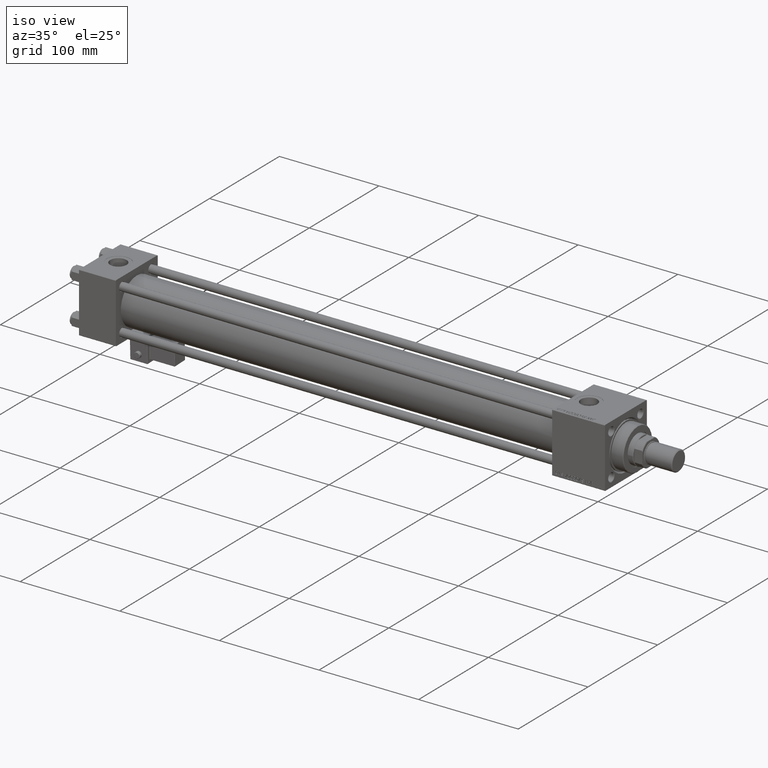
[diagram: clean part render]
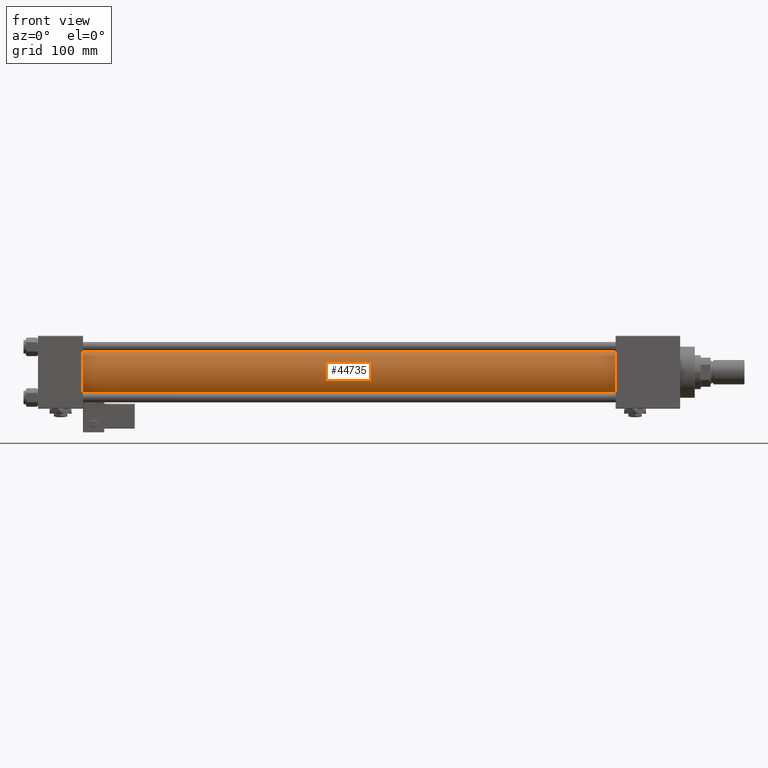
[diagram: tour spotlight — one face highlighted and labeled with its STEP entity id]
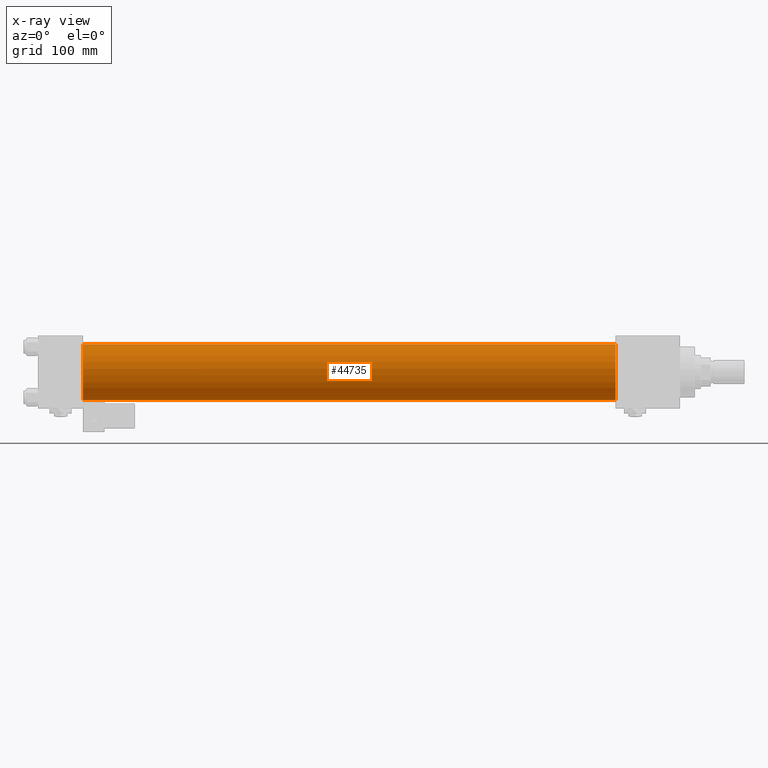
[diagram: x-ray of the same camera — body ghosted, this tour face saturated]
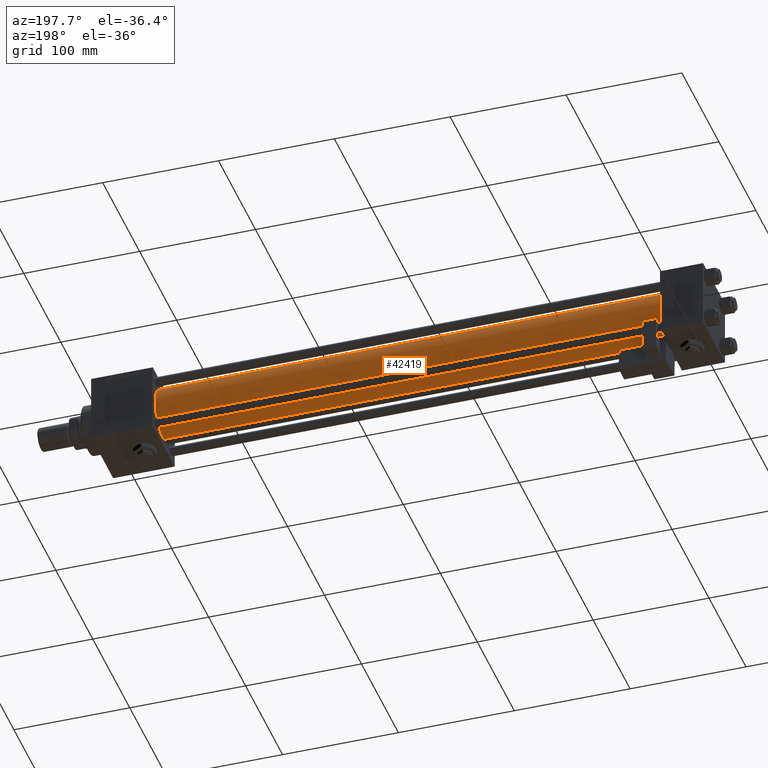
[diagram: tour spotlight — one face highlighted and labeled with its STEP entity id]
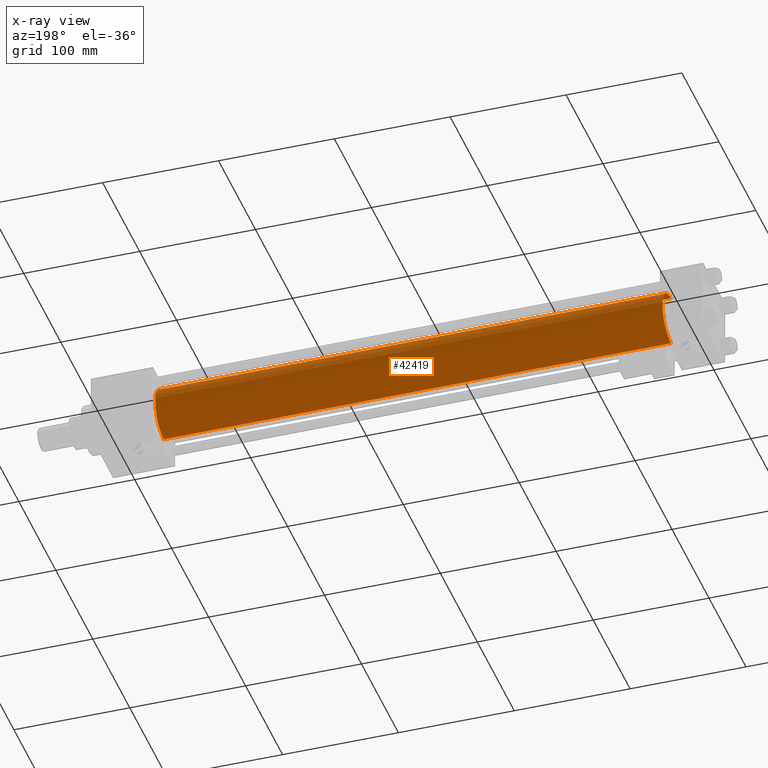
[diagram: x-ray of the same camera — body ghosted, this tour face saturated]
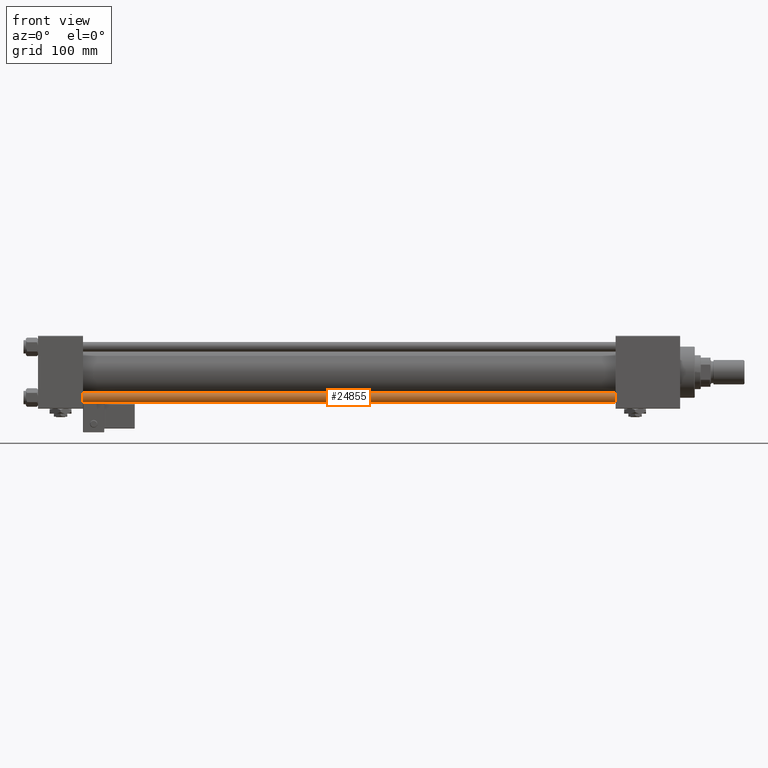
[diagram: tour spotlight — one face highlighted and labeled with its STEP entity id]
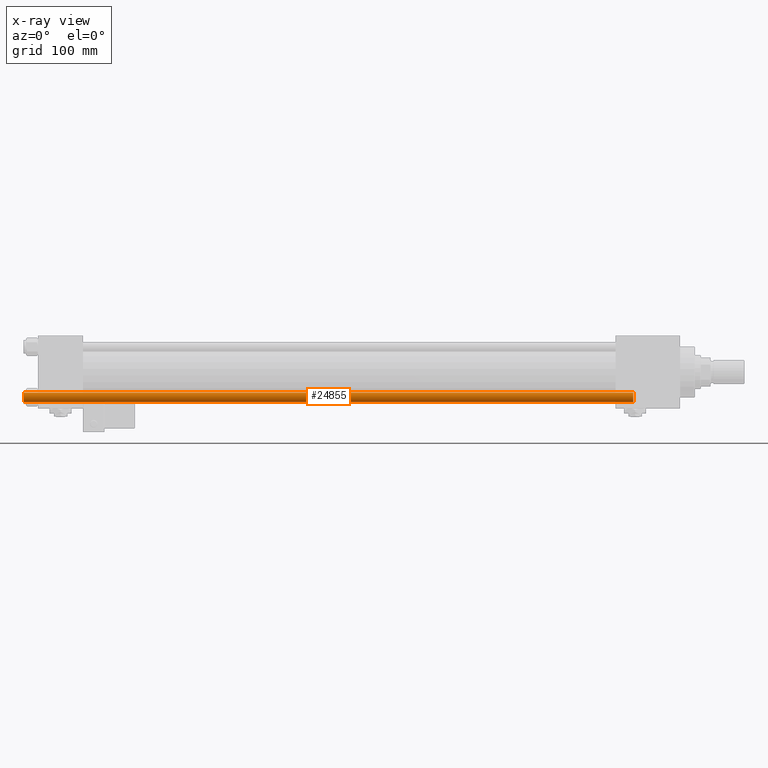
[diagram: x-ray of the same camera — body ghosted, this tour face saturated]
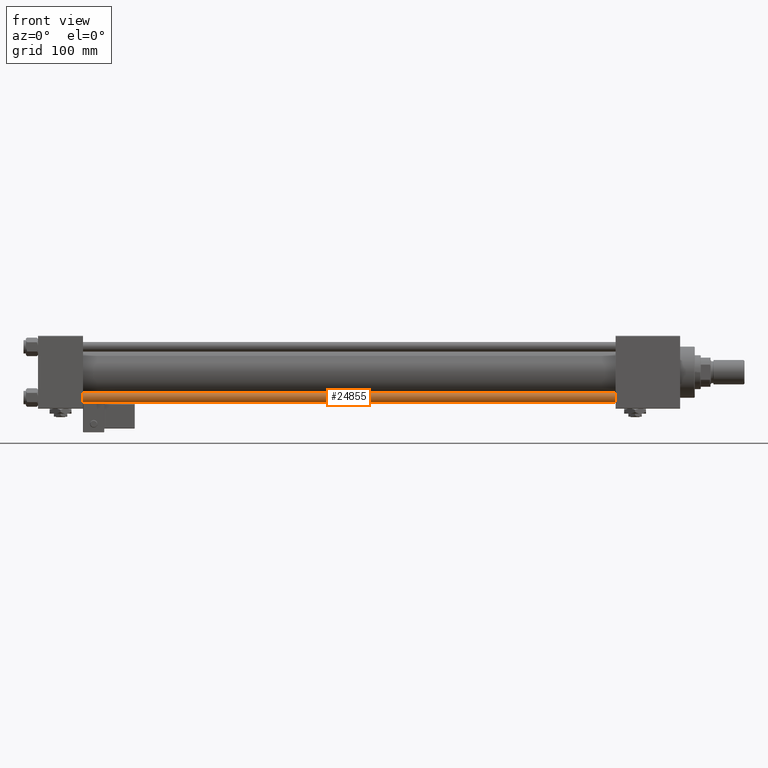
[diagram: tour spotlight — one face highlighted and labeled with its STEP entity id]
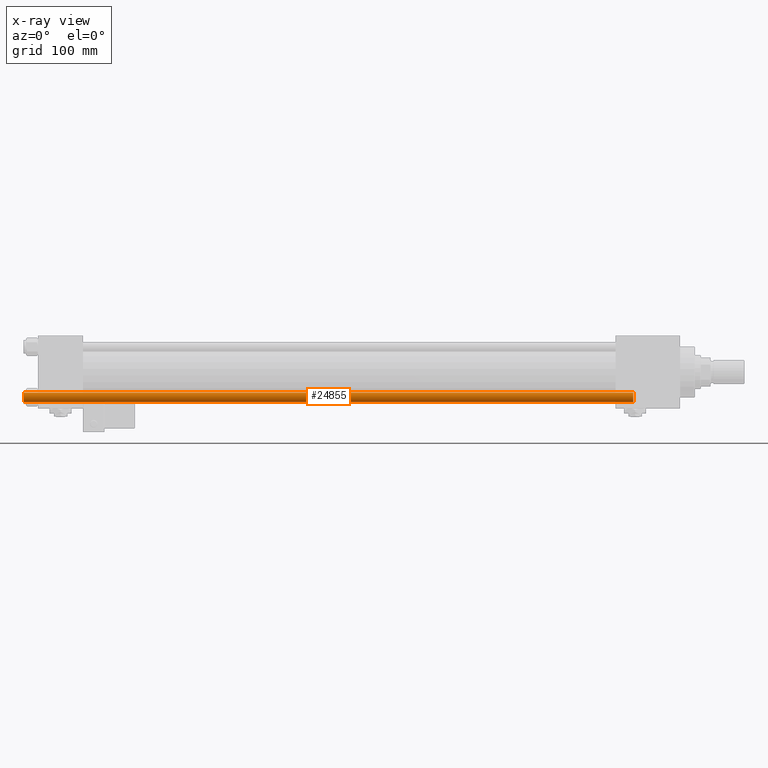
[diagram: x-ray of the same camera — body ghosted, this tour face saturated]
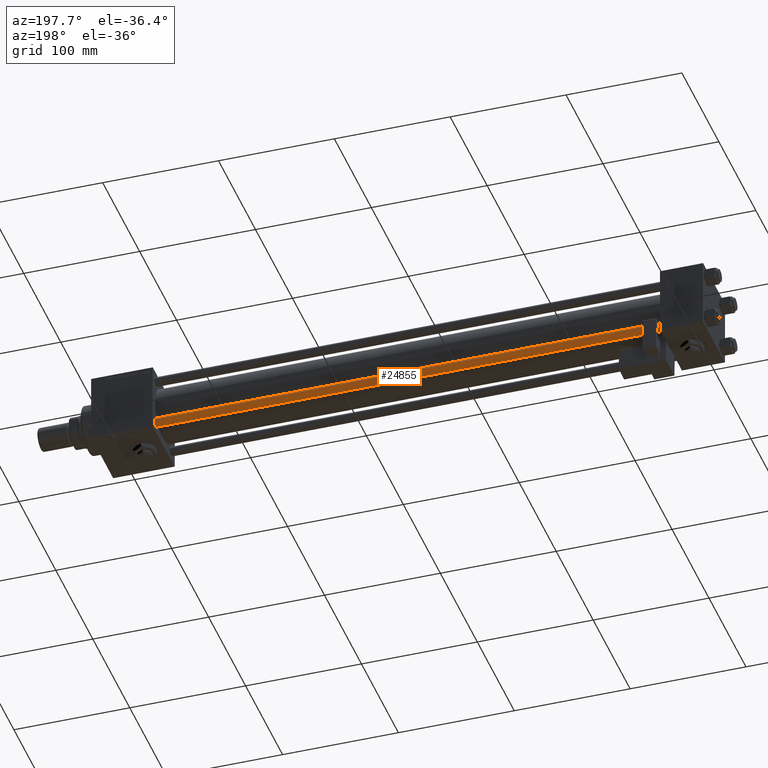
[diagram: tour spotlight — one face highlighted and labeled with its STEP entity id]
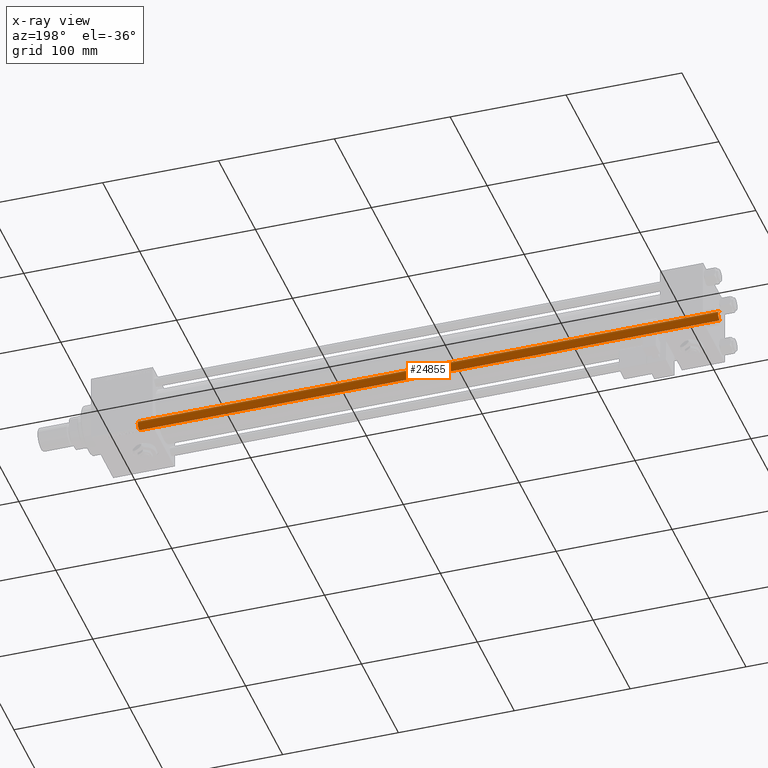
[diagram: x-ray of the same camera — body ghosted, this tour face saturated]
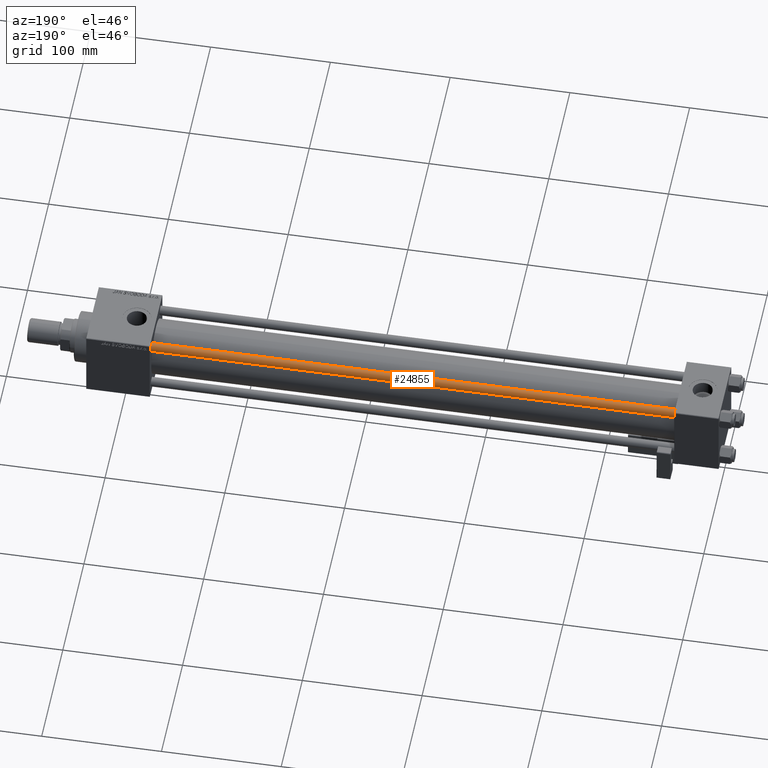
[diagram: tour spotlight — one face highlighted and labeled with its STEP entity id]
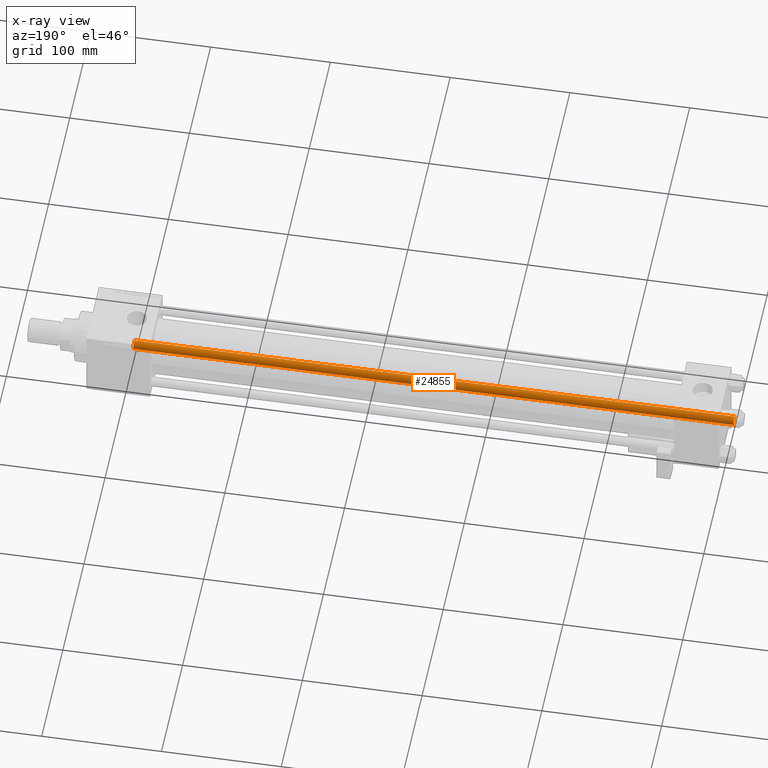
[diagram: x-ray of the same camera — body ghosted, this tour face saturated]
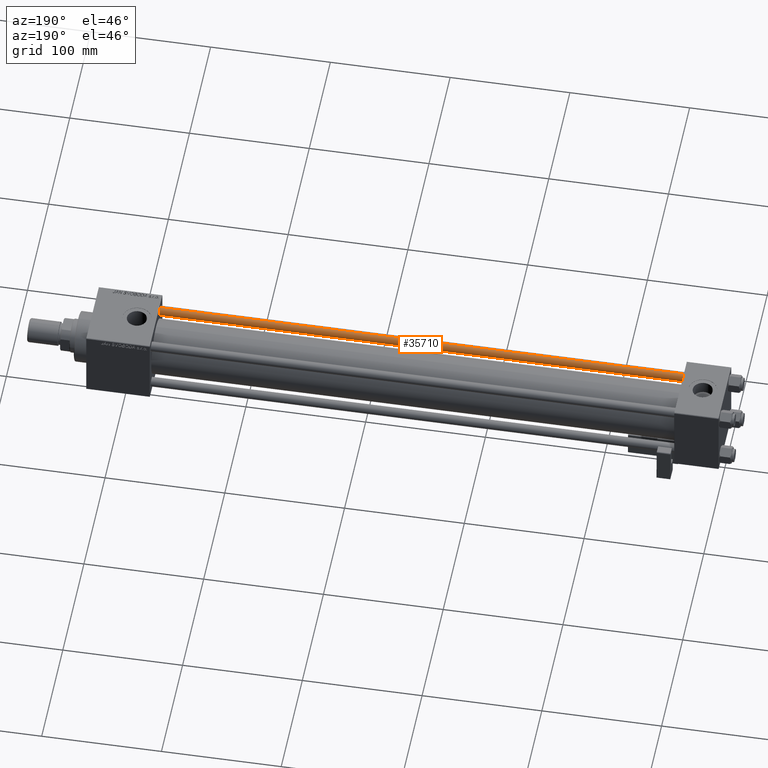
[diagram: tour spotlight — one face highlighted and labeled with its STEP entity id]
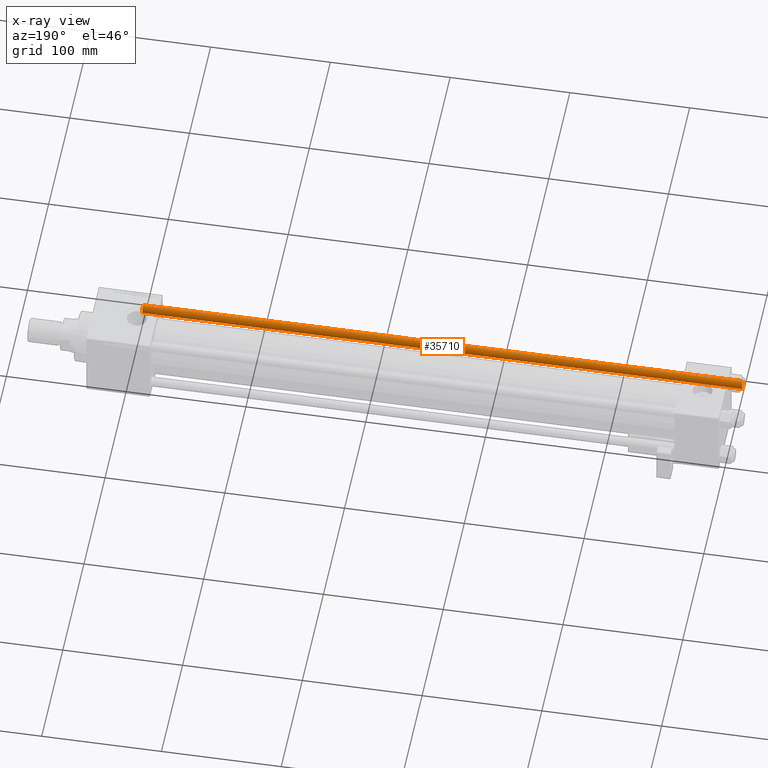
[diagram: x-ray of the same camera — body ghosted, this tour face saturated]
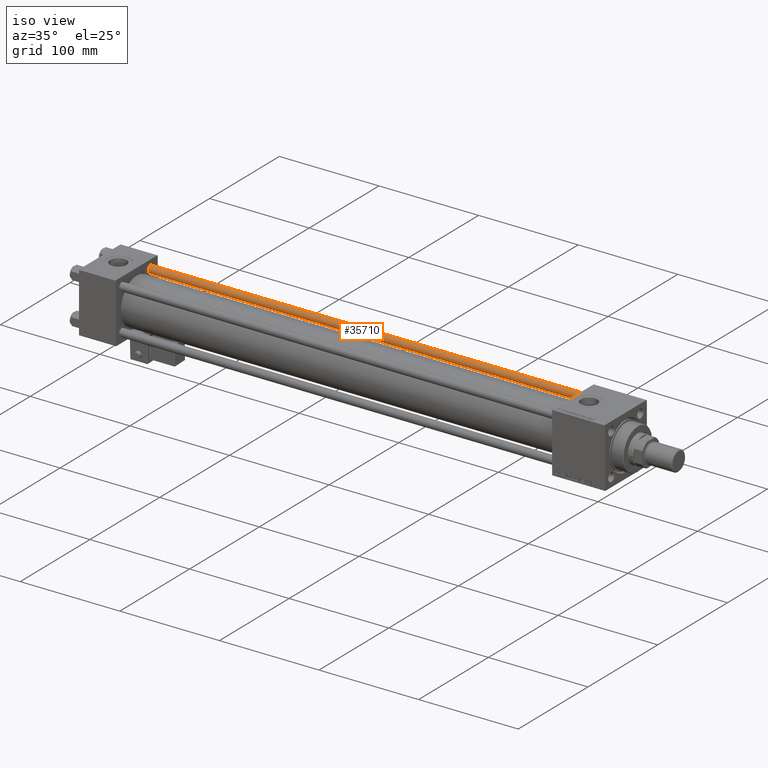
[diagram: tour spotlight — one face highlighted and labeled with its STEP entity id]
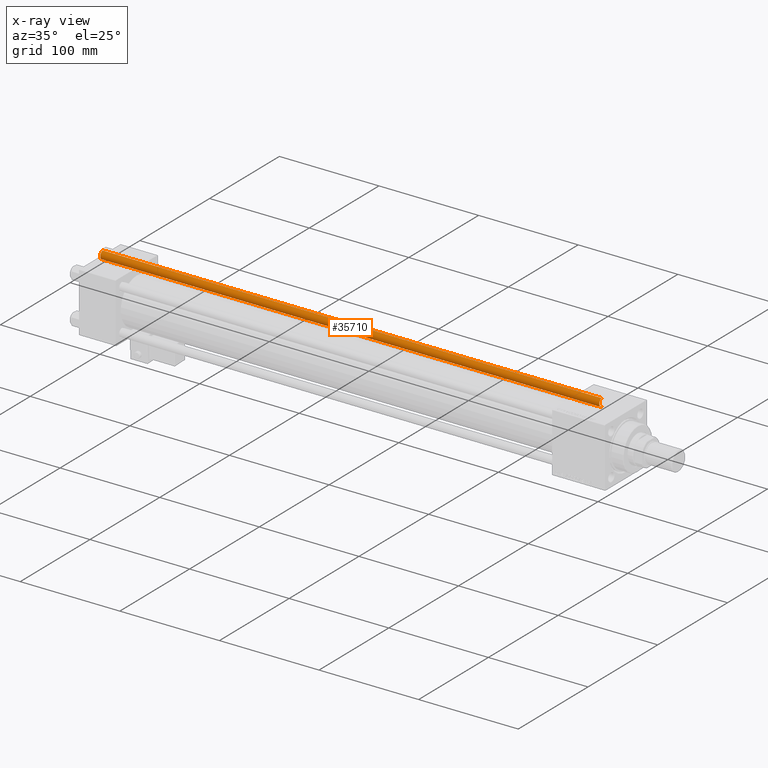
[diagram: x-ray of the same camera — body ghosted, this tour face saturated]
A machine part: a face-by-face anatomy tour. The part has 1341 B-rep faces; the first image is the clean iso view, then the 8 largest visible faces are spotlighted one at a time (largest first), each with its STEP entity span.

Face 1 — front view, entity #44735. An x-ray twin of the same camera follows (body ghosted, this face saturated) — the face is partly hidden behind the body. In plain terms, the highlighted cylindrical surface (edge-blend (fillet) strip) has radius 23 mm, axis along (-1, -0, -0).
Definition (entity closure, byte-faithful):
#1842 = VERTEX_POINT ( 'NONE', #40248 ) ;
#4199 = DIRECTION ( 'NONE',  ( -1.000000000000000000, -0.000000000000000000, -0.000000000000000000 ) ) ;
#4750 = FACE_OUTER_BOUND ( 'NONE', #47930, .T. ) ;
#4853 = EDGE_CURVE ( 'NONE', #34243, #48835, #6489, .T. ) ;
#5969 = AXIS2_PLACEMENT_3D ( 'NONE', #25852, #4199, #47227 ) ;
#6404 = CARTESIAN_POINT ( 'NONE',  ( 475.0000000000000000, 2.146024240737016609E-16, -23.00000000000000000 ) ) ;
#6489 = CIRCLE ( 'NONE', #37538, 23.00000000000000000 ) ;
#6675 = CARTESIAN_POINT ( 'NONE',  ( 36.99999999999997868, -2.602085213965210642E-15, 23.00000000000000000 ) ) ;
#6953 = LINE ( 'NONE', #6404, #23624 ) ;
#9875 = ORIENTED_EDGE ( 'NONE', *, *, #4853, .F. ) ;
#10135 = CARTESIAN_POINT ( 'NONE',  ( 475.0000000000000000, 2.146024240737016609E-16, -23.00000000000000000 ) ) ;
#11757 = ORIENTED_EDGE ( 'NONE', *, *, #19894, .T. ) ;
#17103 = DIRECTION ( 'NONE',  ( 1.000000000000000000, 0.000000000000000000, 0.000000000000000000 ) ) ;
#19375 = CARTESIAN_POINT ( 'NONE',  ( 475.0000000000000000, -2.602085213965210642E-15, 23.00000000000000000 ) ) ;
#19727 = DIRECTION ( 'NONE',  ( -1.000000000000000000, -0.000000000000000000, -0.000000000000000000 ) ) ;
#19894 = EDGE_CURVE ( 'NONE', #34243, #42648, #53802, .T. ) ;
#20734 = CARTESIAN_POINT ( 'NONE',  ( 475.0000000000000000, -2.602085213965210642E-15, 0.000000000000000000 ) ) ;
#22162 = VECTOR ( 'NONE', #32175, 1000.000000000000000 ) ;
#23624 = VECTOR ( 'NONE', #19727, 1000.000000000000000 ) ;
#24957 = EDGE_CURVE ( 'NONE', #42648, #1842, #48965, .T. ) ;
#25852 = CARTESIAN_POINT ( 'NONE',  ( 475.0000000000000000, -2.602085213965210642E-15, 0.000000000000000000 ) ) ;
#32175 = DIRECTION ( 'NONE',  ( -1.000000000000000000, -0.000000000000000000, -0.000000000000000000 ) ) ;
#32996 = CARTESIAN_POINT ( 'NONE',  ( 36.99999999999997868, -2.602085213965210642E-15, 0.000000000000000000 ) ) ;
#34243 = VERTEX_POINT ( 'NONE', #43537 ) ;
#37429 = DIRECTION ( 'NONE',  ( 1.000000000000000000, -0.000000000000000000, 0.000000000000000000 ) ) ;
#37538 = AXIS2_PLACEMENT_3D ( 'NONE', #20734, #17103, #41867 ) ;
#39780 = ORIENTED_EDGE ( 'NONE', *, *, #24957, .T. ) ;
#40248 = CARTESIAN_POINT ( 'NONE',  ( 36.99999999999997868, 2.146024240737016609E-16, -23.00000000000000000 ) ) ;
#41867 = DIRECTION ( 'NONE',  ( 0.000000000000000000, 0.000000000000000000, -1.000000000000000000 ) ) ;
#42258 = CYLINDRICAL_SURFACE ( 'NONE', #5969, 23.00000000000000000 ) ;
#42648 = VERTEX_POINT ( 'NONE', #6675 ) ;
#42779 = EDGE_CURVE ( 'NONE', #48835, #1842, #6953, .T. ) ;
#43537 = CARTESIAN_POINT ( 'NONE',  ( 475.0000000000000000, -2.602085213965210642E-15, 23.00000000000000000 ) ) ;
#44735 = ADVANCED_FACE ( 'NONE', ( #4750 ), #42258, .T. ) ;
#47227 = DIRECTION ( 'NONE',  ( 0.000000000000000000, 0.000000000000000000, 1.000000000000000000 ) ) ;
#47930 = EDGE_LOOP ( 'NONE', ( #50830, #9875, #11757, #39780 ) ) ;
#48821 = DIRECTION ( 'NONE',  ( 0.000000000000000000, 0.000000000000000000, 1.000000000000000000 ) ) ;
#48835 = VERTEX_POINT ( 'NONE', #10135 ) ;
#48965 = CIRCLE ( 'NONE', #52483, 23.00000000000000000 ) ;
#50830 = ORIENTED_EDGE ( 'NONE', *, *, #42779, .F. ) ;
#52483 = AXIS2_PLACEMENT_3D ( 'NONE', #32996, #37429, #48821 ) ;
#53802 = LINE ( 'NONE', #19375, #22162 ) ;

Face 2 — auxiliary view, entity #42419. An x-ray twin of the same camera follows (body ghosted, this face saturated) — the face is partly hidden behind the body. In plain terms, the highlighted cylindrical surface (edge-blend (fillet) strip) has radius 23 mm, axis along (-1, -0, -0).
Definition (entity closure, byte-faithful):
#1435 = ORIENTED_EDGE ( 'NONE', *, *, #42779, .T. ) ;
#1463 = AXIS2_PLACEMENT_3D ( 'NONE', #7021, #48955, #49501 ) ;
#1842 = VERTEX_POINT ( 'NONE', #40248 ) ;
#6404 = CARTESIAN_POINT ( 'NONE',  ( 475.0000000000000000, 2.146024240737016609E-16, -23.00000000000000000 ) ) ;
#6675 = CARTESIAN_POINT ( 'NONE',  ( 36.99999999999997868, -2.602085213965210642E-15, 23.00000000000000000 ) ) ;
#6953 = LINE ( 'NONE', #6404, #23624 ) ;
#7021 = CARTESIAN_POINT ( 'NONE',  ( 475.0000000000000000, -2.602085213965210642E-15, 0.000000000000000000 ) ) ;
#8853 = AXIS2_PLACEMENT_3D ( 'NONE', #32672, #15433, #49044 ) ;
#10135 = CARTESIAN_POINT ( 'NONE',  ( 475.0000000000000000, 2.146024240737016609E-16, -23.00000000000000000 ) ) ;
#13378 = ORIENTED_EDGE ( 'NONE', *, *, #19894, .F. ) ;
#14632 = ORIENTED_EDGE ( 'NONE', *, *, #53755, .T. ) ;
#15433 = DIRECTION ( 'NONE',  ( 1.000000000000000000, -0.000000000000000000, 0.000000000000000000 ) ) ;
#15725 = CIRCLE ( 'NONE', #29062, 23.00000000000000000 ) ;
#18048 = DIRECTION ( 'NONE',  ( 0.000000000000000000, 0.000000000000000000, -1.000000000000000000 ) ) ;
#19375 = CARTESIAN_POINT ( 'NONE',  ( 475.0000000000000000, -2.602085213965210642E-15, 23.00000000000000000 ) ) ;
#19518 = FACE_OUTER_BOUND ( 'NONE', #54112, .T. ) ;
#19727 = DIRECTION ( 'NONE',  ( -1.000000000000000000, -0.000000000000000000, -0.000000000000000000 ) ) ;
#19894 = EDGE_CURVE ( 'NONE', #34243, #42648, #53802, .T. ) ;
#22162 = VECTOR ( 'NONE', #32175, 1000.000000000000000 ) ;
#23624 = VECTOR ( 'NONE', #19727, 1000.000000000000000 ) ;
#29062 = AXIS2_PLACEMENT_3D ( 'NONE', #35556, #52475, #18048 ) ;
#32175 = DIRECTION ( 'NONE',  ( -1.000000000000000000, -0.000000000000000000, -0.000000000000000000 ) ) ;
#32315 = CYLINDRICAL_SURFACE ( 'NONE', #1463, 23.00000000000000000 ) ;
#32672 = CARTESIAN_POINT ( 'NONE',  ( 36.99999999999997868, -2.602085213965210642E-15, 0.000000000000000000 ) ) ;
#34243 = VERTEX_POINT ( 'NONE', #43537 ) ;
#35556 = CARTESIAN_POINT ( 'NONE',  ( 475.0000000000000000, -2.602085213965210642E-15, 0.000000000000000000 ) ) ;
#40248 = CARTESIAN_POINT ( 'NONE',  ( 36.99999999999997868, 2.146024240737016609E-16, -23.00000000000000000 ) ) ;
#41387 = ORIENTED_EDGE ( 'NONE', *, *, #44044, .F. ) ;
#42419 = ADVANCED_FACE ( 'NONE', ( #19518 ), #32315, .T. ) ;
#42648 = VERTEX_POINT ( 'NONE', #6675 ) ;
#42779 = EDGE_CURVE ( 'NONE', #48835, #1842, #6953, .T. ) ;
#43537 = CARTESIAN_POINT ( 'NONE',  ( 475.0000000000000000, -2.602085213965210642E-15, 23.00000000000000000 ) ) ;
#44044 = EDGE_CURVE ( 'NONE', #48835, #34243, #15725, .T. ) ;
#45235 = CIRCLE ( 'NONE', #8853, 23.00000000000000000 ) ;
#48835 = VERTEX_POINT ( 'NONE', #10135 ) ;
#48955 = DIRECTION ( 'NONE',  ( -1.000000000000000000, -0.000000000000000000, -0.000000000000000000 ) ) ;
#49044 = DIRECTION ( 'NONE',  ( 0.000000000000000000, 0.000000000000000000, 1.000000000000000000 ) ) ;
#49501 = DIRECTION ( 'NONE',  ( 0.000000000000000000, 0.000000000000000000, 1.000000000000000000 ) ) ;
#52475 = DIRECTION ( 'NONE',  ( 1.000000000000000000, 0.000000000000000000, 0.000000000000000000 ) ) ;
#53755 = EDGE_CURVE ( 'NONE', #1842, #42648, #45235, .T. ) ;
#53802 = LINE ( 'NONE', #19375, #22162 ) ;
#54112 = EDGE_LOOP ( 'NONE', ( #41387, #1435, #14632, #13378 ) ) ;

Face 3 — front view, entity #24855. An x-ray twin of the same camera follows (body ghosted, this face saturated) — the face is partly hidden behind the body. In plain terms, the highlighted cylindrical surface (edge-blend (fillet) strip) has radius 4 mm, axis along (1, 0, -0).
Definition (entity closure, byte-faithful):
#1354 = DIRECTION ( 'NONE',  ( -0.000000000000000000, -0.000000000000000000, -1.000000000000000000 ) ) ;
#3990 = CARTESIAN_POINT ( 'NONE',  ( -4.000000000000000000, 0.000000000000000000, 501.4999999999999432 ) ) ;
#4006 = DIRECTION ( 'NONE',  ( -0.000000000000000000, -0.000000000000000000, -1.000000000000000000 ) ) ;
#5753 = CARTESIAN_POINT ( 'NONE',  ( 4.000000000000000000, 4.898587196589412829E-16, 502.0000000000000000 ) ) ;
#6752 = VERTEX_POINT ( 'NONE', #52958 ) ;
#7477 = ORIENTED_EDGE ( 'NONE', *, *, #53730, .T. ) ;
#7726 = ORIENTED_EDGE ( 'NONE', *, *, #41875, .T. ) ;
#9752 = VERTEX_POINT ( 'NONE', #53785 ) ;
#10744 = LINE ( 'NONE', #5753, #54184 ) ;
#11957 = ORIENTED_EDGE ( 'NONE', *, *, #20335, .F. ) ;
#12078 = CIRCLE ( 'NONE', #18256, 4.000000000000000000 ) ;
#14386 = FACE_OUTER_BOUND ( 'NONE', #26168, .T. ) ;
#17753 = VECTOR ( 'NONE', #4006, 1000.000000000000000 ) ;
#18256 = AXIS2_PLACEMENT_3D ( 'NONE', #39878, #22371, #31276 ) ;
#20335 = EDGE_CURVE ( 'NONE', #47997, #9752, #42061, .T. ) ;
#21445 = AXIS2_PLACEMENT_3D ( 'NONE', #31079, #1354, #52156 ) ;
#22371 = DIRECTION ( 'NONE',  ( 0.000000000000000000, 0.000000000000000000, -1.000000000000000000 ) ) ;
#22477 = EDGE_CURVE ( 'NONE', #6752, #23797, #10744, .T. ) ;
#22977 = DIRECTION ( 'NONE',  ( -0.000000000000000000, -0.000000000000000000, -1.000000000000000000 ) ) ;
#23797 = VERTEX_POINT ( 'NONE', #23830 ) ;
#23830 = CARTESIAN_POINT ( 'NONE',  ( 4.000000000000000000, 4.898587196589412829E-16, 0.4999999999999449329 ) ) ;
#24855 = ADVANCED_FACE ( 'NONE', ( #14386 ), #26336, .T. ) ;
#26168 = EDGE_LOOP ( 'NONE', ( #7726, #40262, #7477, #11957 ) ) ;
#26336 = CYLINDRICAL_SURFACE ( 'NONE', #21445, 4.000000000000000000 ) ;
#28771 = CARTESIAN_POINT ( 'NONE',  ( 0.000000000000000000, 0.000000000000000000, 0.4999999999999449329 ) ) ;
#29284 = CARTESIAN_POINT ( 'NONE',  ( -4.000000000000000000, 0.000000000000000000, 502.0000000000000000 ) ) ;
#31079 = CARTESIAN_POINT ( 'NONE',  ( 0.000000000000000000, 0.000000000000000000, 502.0000000000000000 ) ) ;
#31276 = DIRECTION ( 'NONE',  ( 1.000000000000000000, 0.000000000000000000, 0.000000000000000000 ) ) ;
#39027 = CIRCLE ( 'NONE', #53222, 4.000000000000000000 ) ;
#39878 = CARTESIAN_POINT ( 'NONE',  ( 0.000000000000000000, 0.000000000000000000, 501.4999999999999432 ) ) ;
#40262 = ORIENTED_EDGE ( 'NONE', *, *, #22477, .T. ) ;
#41875 = EDGE_CURVE ( 'NONE', #47997, #6752, #12078, .T. ) ;
#42061 = LINE ( 'NONE', #29284, #17753 ) ;
#45162 = DIRECTION ( 'NONE',  ( -0.000000000000000000, -0.000000000000000000, 1.000000000000000000 ) ) ;
#45703 = DIRECTION ( 'NONE',  ( 1.000000000000000000, 0.000000000000000000, 0.000000000000000000 ) ) ;
#47997 = VERTEX_POINT ( 'NONE', #3990 ) ;
#52156 = DIRECTION ( 'NONE',  ( -1.000000000000000000, 0.000000000000000000, 0.000000000000000000 ) ) ;
#52958 = CARTESIAN_POINT ( 'NONE',  ( 4.000000000000000000, 4.898587196589412829E-16, 501.4999999999999432 ) ) ;
#53222 = AXIS2_PLACEMENT_3D ( 'NONE', #28771, #45162, #45703 ) ;
#53730 = EDGE_CURVE ( 'NONE', #23797, #9752, #39027, .T. ) ;
#53785 = CARTESIAN_POINT ( 'NONE',  ( -4.000000000000000000, 0.000000000000000000, 0.4999999999999449329 ) ) ;
#54184 = VECTOR ( 'NONE', #22977, 1000.000000000000000 ) ;

Face 4 — front view, entity #24855. An x-ray twin of the same camera follows (body ghosted, this face saturated) — the face is partly hidden behind the body. In plain terms, the highlighted cylindrical surface (edge-blend (fillet) strip) has radius 4 mm, axis along (-1, -0, -0).
Definition (entity closure, byte-faithful):
#1354 = DIRECTION ( 'NONE',  ( -0.000000000000000000, -0.000000000000000000, -1.000000000000000000 ) ) ;
#3990 = CARTESIAN_POINT ( 'NONE',  ( -4.000000000000000000, 0.000000000000000000, 501.4999999999999432 ) ) ;
#4006 = DIRECTION ( 'NONE',  ( -0.000000000000000000, -0.000000000000000000, -1.000000000000000000 ) ) ;
#5753 = CARTESIAN_POINT ( 'NONE',  ( 4.000000000000000000, 4.898587196589412829E-16, 502.0000000000000000 ) ) ;
#6752 = VERTEX_POINT ( 'NONE', #52958 ) ;
#7477 = ORIENTED_EDGE ( 'NONE', *, *, #53730, .T. ) ;
#7726 = ORIENTED_EDGE ( 'NONE', *, *, #41875, .T. ) ;
#9752 = VERTEX_POINT ( 'NONE', #53785 ) ;
#10744 = LINE ( 'NONE', #5753, #54184 ) ;
#11957 = ORIENTED_EDGE ( 'NONE', *, *, #20335, .F. ) ;
#12078 = CIRCLE ( 'NONE', #18256, 4.000000000000000000 ) ;
#14386 = FACE_OUTER_BOUND ( 'NONE', #26168, .T. ) ;
#17753 = VECTOR ( 'NONE', #4006, 1000.000000000000000 ) ;
#18256 = AXIS2_PLACEMENT_3D ( 'NONE', #39878, #22371, #31276 ) ;
#20335 = EDGE_CURVE ( 'NONE', #47997, #9752, #42061, .T. ) ;
#21445 = AXIS2_PLACEMENT_3D ( 'NONE', #31079, #1354, #52156 ) ;
#22371 = DIRECTION ( 'NONE',  ( 0.000000000000000000, 0.000000000000000000, -1.000000000000000000 ) ) ;
#22477 = EDGE_CURVE ( 'NONE', #6752, #23797, #10744, .T. ) ;
#22977 = DIRECTION ( 'NONE',  ( -0.000000000000000000, -0.000000000000000000, -1.000000000000000000 ) ) ;
#23797 = VERTEX_POINT ( 'NONE', #23830 ) ;
#23830 = CARTESIAN_POINT ( 'NONE',  ( 4.000000000000000000, 4.898587196589412829E-16, 0.4999999999999449329 ) ) ;
#24855 = ADVANCED_FACE ( 'NONE', ( #14386 ), #26336, .T. ) ;
#26168 = EDGE_LOOP ( 'NONE', ( #7726, #40262, #7477, #11957 ) ) ;
#26336 = CYLINDRICAL_SURFACE ( 'NONE', #21445, 4.000000000000000000 ) ;
#28771 = CARTESIAN_POINT ( 'NONE',  ( 0.000000000000000000, 0.000000000000000000, 0.4999999999999449329 ) ) ;
#29284 = CARTESIAN_POINT ( 'NONE',  ( -4.000000000000000000, 0.000000000000000000, 502.0000000000000000 ) ) ;
#31079 = CARTESIAN_POINT ( 'NONE',  ( 0.000000000000000000, 0.000000000000000000, 502.0000000000000000 ) ) ;
#31276 = DIRECTION ( 'NONE',  ( 1.000000000000000000, 0.000000000000000000, 0.000000000000000000 ) ) ;
#39027 = CIRCLE ( 'NONE', #53222, 4.000000000000000000 ) ;
#39878 = CARTESIAN_POINT ( 'NONE',  ( 0.000000000000000000, 0.000000000000000000, 501.4999999999999432 ) ) ;
#40262 = ORIENTED_EDGE ( 'NONE', *, *, #22477, .T. ) ;
#41875 = EDGE_CURVE ( 'NONE', #47997, #6752, #12078, .T. ) ;
#42061 = LINE ( 'NONE', #29284, #17753 ) ;
#45162 = DIRECTION ( 'NONE',  ( -0.000000000000000000, -0.000000000000000000, 1.000000000000000000 ) ) ;
#45703 = DIRECTION ( 'NONE',  ( 1.000000000000000000, 0.000000000000000000, 0.000000000000000000 ) ) ;
#47997 = VERTEX_POINT ( 'NONE', #3990 ) ;
#52156 = DIRECTION ( 'NONE',  ( -1.000000000000000000, 0.000000000000000000, 0.000000000000000000 ) ) ;
#52958 = CARTESIAN_POINT ( 'NONE',  ( 4.000000000000000000, 4.898587196589412829E-16, 501.4999999999999432 ) ) ;
#53222 = AXIS2_PLACEMENT_3D ( 'NONE', #28771, #45162, #45703 ) ;
#53730 = EDGE_CURVE ( 'NONE', #23797, #9752, #39027, .T. ) ;
#53785 = CARTESIAN_POINT ( 'NONE',  ( -4.000000000000000000, 0.000000000000000000, 0.4999999999999449329 ) ) ;
#54184 = VECTOR ( 'NONE', #22977, 1000.000000000000000 ) ;

Face 5 — auxiliary view, entity #24855. An x-ray twin of the same camera follows (body ghosted, this face saturated) — the face is partly hidden behind the body. In plain terms, the highlighted cylindrical surface (edge-blend (fillet) strip) has radius 4 mm, axis along (1, -0, 0).
Definition (entity closure, byte-faithful):
#1354 = DIRECTION ( 'NONE',  ( -0.000000000000000000, -0.000000000000000000, -1.000000000000000000 ) ) ;
#3990 = CARTESIAN_POINT ( 'NONE',  ( -4.000000000000000000, 0.000000000000000000, 501.4999999999999432 ) ) ;
#4006 = DIRECTION ( 'NONE',  ( -0.000000000000000000, -0.000000000000000000, -1.000000000000000000 ) ) ;
#5753 = CARTESIAN_POINT ( 'NONE',  ( 4.000000000000000000, 4.898587196589412829E-16, 502.0000000000000000 ) ) ;
#6752 = VERTEX_POINT ( 'NONE', #52958 ) ;
#7477 = ORIENTED_EDGE ( 'NONE', *, *, #53730, .T. ) ;
#7726 = ORIENTED_EDGE ( 'NONE', *, *, #41875, .T. ) ;
#9752 = VERTEX_POINT ( 'NONE', #53785 ) ;
#10744 = LINE ( 'NONE', #5753, #54184 ) ;
#11957 = ORIENTED_EDGE ( 'NONE', *, *, #20335, .F. ) ;
#12078 = CIRCLE ( 'NONE', #18256, 4.000000000000000000 ) ;
#14386 = FACE_OUTER_BOUND ( 'NONE', #26168, .T. ) ;
#17753 = VECTOR ( 'NONE', #4006, 1000.000000000000000 ) ;
#18256 = AXIS2_PLACEMENT_3D ( 'NONE', #39878, #22371, #31276 ) ;
#20335 = EDGE_CURVE ( 'NONE', #47997, #9752, #42061, .T. ) ;
#21445 = AXIS2_PLACEMENT_3D ( 'NONE', #31079, #1354, #52156 ) ;
#22371 = DIRECTION ( 'NONE',  ( 0.000000000000000000, 0.000000000000000000, -1.000000000000000000 ) ) ;
#22477 = EDGE_CURVE ( 'NONE', #6752, #23797, #10744, .T. ) ;
#22977 = DIRECTION ( 'NONE',  ( -0.000000000000000000, -0.000000000000000000, -1.000000000000000000 ) ) ;
#23797 = VERTEX_POINT ( 'NONE', #23830 ) ;
#23830 = CARTESIAN_POINT ( 'NONE',  ( 4.000000000000000000, 4.898587196589412829E-16, 0.4999999999999449329 ) ) ;
#24855 = ADVANCED_FACE ( 'NONE', ( #14386 ), #26336, .T. ) ;
#26168 = EDGE_LOOP ( 'NONE', ( #7726, #40262, #7477, #11957 ) ) ;
#26336 = CYLINDRICAL_SURFACE ( 'NONE', #21445, 4.000000000000000000 ) ;
#28771 = CARTESIAN_POINT ( 'NONE',  ( 0.000000000000000000, 0.000000000000000000, 0.4999999999999449329 ) ) ;
#29284 = CARTESIAN_POINT ( 'NONE',  ( -4.000000000000000000, 0.000000000000000000, 502.0000000000000000 ) ) ;
#31079 = CARTESIAN_POINT ( 'NONE',  ( 0.000000000000000000, 0.000000000000000000, 502.0000000000000000 ) ) ;
#31276 = DIRECTION ( 'NONE',  ( 1.000000000000000000, 0.000000000000000000, 0.000000000000000000 ) ) ;
#39027 = CIRCLE ( 'NONE', #53222, 4.000000000000000000 ) ;
#39878 = CARTESIAN_POINT ( 'NONE',  ( 0.000000000000000000, 0.000000000000000000, 501.4999999999999432 ) ) ;
#40262 = ORIENTED_EDGE ( 'NONE', *, *, #22477, .T. ) ;
#41875 = EDGE_CURVE ( 'NONE', #47997, #6752, #12078, .T. ) ;
#42061 = LINE ( 'NONE', #29284, #17753 ) ;
#45162 = DIRECTION ( 'NONE',  ( -0.000000000000000000, -0.000000000000000000, 1.000000000000000000 ) ) ;
#45703 = DIRECTION ( 'NONE',  ( 1.000000000000000000, 0.000000000000000000, 0.000000000000000000 ) ) ;
#47997 = VERTEX_POINT ( 'NONE', #3990 ) ;
#52156 = DIRECTION ( 'NONE',  ( -1.000000000000000000, 0.000000000000000000, 0.000000000000000000 ) ) ;
#52958 = CARTESIAN_POINT ( 'NONE',  ( 4.000000000000000000, 4.898587196589412829E-16, 501.4999999999999432 ) ) ;
#53222 = AXIS2_PLACEMENT_3D ( 'NONE', #28771, #45162, #45703 ) ;
#53730 = EDGE_CURVE ( 'NONE', #23797, #9752, #39027, .T. ) ;
#53785 = CARTESIAN_POINT ( 'NONE',  ( -4.000000000000000000, 0.000000000000000000, 0.4999999999999449329 ) ) ;
#54184 = VECTOR ( 'NONE', #22977, 1000.000000000000000 ) ;

Face 6 — auxiliary view, entity #24855. An x-ray twin of the same camera follows (body ghosted, this face saturated) — the face is partly hidden behind the body. In plain terms, the highlighted cylindrical surface (edge-blend (fillet) strip) has radius 4 mm, axis along (-1, 0, 0).
Definition (entity closure, byte-faithful):
#1354 = DIRECTION ( 'NONE',  ( -0.000000000000000000, -0.000000000000000000, -1.000000000000000000 ) ) ;
#3990 = CARTESIAN_POINT ( 'NONE',  ( -4.000000000000000000, 0.000000000000000000, 501.4999999999999432 ) ) ;
#4006 = DIRECTION ( 'NONE',  ( -0.000000000000000000, -0.000000000000000000, -1.000000000000000000 ) ) ;
#5753 = CARTESIAN_POINT ( 'NONE',  ( 4.000000000000000000, 4.898587196589412829E-16, 502.0000000000000000 ) ) ;
#6752 = VERTEX_POINT ( 'NONE', #52958 ) ;
#7477 = ORIENTED_EDGE ( 'NONE', *, *, #53730, .T. ) ;
#7726 = ORIENTED_EDGE ( 'NONE', *, *, #41875, .T. ) ;
#9752 = VERTEX_POINT ( 'NONE', #53785 ) ;
#10744 = LINE ( 'NONE', #5753, #54184 ) ;
#11957 = ORIENTED_EDGE ( 'NONE', *, *, #20335, .F. ) ;
#12078 = CIRCLE ( 'NONE', #18256, 4.000000000000000000 ) ;
#14386 = FACE_OUTER_BOUND ( 'NONE', #26168, .T. ) ;
#17753 = VECTOR ( 'NONE', #4006, 1000.000000000000000 ) ;
#18256 = AXIS2_PLACEMENT_3D ( 'NONE', #39878, #22371, #31276 ) ;
#20335 = EDGE_CURVE ( 'NONE', #47997, #9752, #42061, .T. ) ;
#21445 = AXIS2_PLACEMENT_3D ( 'NONE', #31079, #1354, #52156 ) ;
#22371 = DIRECTION ( 'NONE',  ( 0.000000000000000000, 0.000000000000000000, -1.000000000000000000 ) ) ;
#22477 = EDGE_CURVE ( 'NONE', #6752, #23797, #10744, .T. ) ;
#22977 = DIRECTION ( 'NONE',  ( -0.000000000000000000, -0.000000000000000000, -1.000000000000000000 ) ) ;
#23797 = VERTEX_POINT ( 'NONE', #23830 ) ;
#23830 = CARTESIAN_POINT ( 'NONE',  ( 4.000000000000000000, 4.898587196589412829E-16, 0.4999999999999449329 ) ) ;
#24855 = ADVANCED_FACE ( 'NONE', ( #14386 ), #26336, .T. ) ;
#26168 = EDGE_LOOP ( 'NONE', ( #7726, #40262, #7477, #11957 ) ) ;
#26336 = CYLINDRICAL_SURFACE ( 'NONE', #21445, 4.000000000000000000 ) ;
#28771 = CARTESIAN_POINT ( 'NONE',  ( 0.000000000000000000, 0.000000000000000000, 0.4999999999999449329 ) ) ;
#29284 = CARTESIAN_POINT ( 'NONE',  ( -4.000000000000000000, 0.000000000000000000, 502.0000000000000000 ) ) ;
#31079 = CARTESIAN_POINT ( 'NONE',  ( 0.000000000000000000, 0.000000000000000000, 502.0000000000000000 ) ) ;
#31276 = DIRECTION ( 'NONE',  ( 1.000000000000000000, 0.000000000000000000, 0.000000000000000000 ) ) ;
#39027 = CIRCLE ( 'NONE', #53222, 4.000000000000000000 ) ;
#39878 = CARTESIAN_POINT ( 'NONE',  ( 0.000000000000000000, 0.000000000000000000, 501.4999999999999432 ) ) ;
#40262 = ORIENTED_EDGE ( 'NONE', *, *, #22477, .T. ) ;
#41875 = EDGE_CURVE ( 'NONE', #47997, #6752, #12078, .T. ) ;
#42061 = LINE ( 'NONE', #29284, #17753 ) ;
#45162 = DIRECTION ( 'NONE',  ( -0.000000000000000000, -0.000000000000000000, 1.000000000000000000 ) ) ;
#45703 = DIRECTION ( 'NONE',  ( 1.000000000000000000, 0.000000000000000000, 0.000000000000000000 ) ) ;
#47997 = VERTEX_POINT ( 'NONE', #3990 ) ;
#52156 = DIRECTION ( 'NONE',  ( -1.000000000000000000, 0.000000000000000000, 0.000000000000000000 ) ) ;
#52958 = CARTESIAN_POINT ( 'NONE',  ( 4.000000000000000000, 4.898587196589412829E-16, 501.4999999999999432 ) ) ;
#53222 = AXIS2_PLACEMENT_3D ( 'NONE', #28771, #45162, #45703 ) ;
#53730 = EDGE_CURVE ( 'NONE', #23797, #9752, #39027, .T. ) ;
#53785 = CARTESIAN_POINT ( 'NONE',  ( -4.000000000000000000, 0.000000000000000000, 0.4999999999999449329 ) ) ;
#54184 = VECTOR ( 'NONE', #22977, 1000.000000000000000 ) ;

Face 7 — auxiliary view, entity #35710. An x-ray twin of the same camera follows (body ghosted, this face saturated) — the face is partly hidden behind the body. In plain terms, the highlighted cylindrical surface (edge-blend (fillet) strip) has radius 4 mm, axis along (1, 0, -0).
Definition (entity closure, byte-faithful):
#1785 = DIRECTION ( 'NONE',  ( -0.000000000000000000, -0.000000000000000000, 1.000000000000000000 ) ) ;
#3587 = EDGE_CURVE ( 'NONE', #6752, #47997, #36639, .T. ) ;
#3990 = CARTESIAN_POINT ( 'NONE',  ( -4.000000000000000000, 0.000000000000000000, 501.4999999999999432 ) ) ;
#4006 = DIRECTION ( 'NONE',  ( -0.000000000000000000, -0.000000000000000000, -1.000000000000000000 ) ) ;
#5753 = CARTESIAN_POINT ( 'NONE',  ( 4.000000000000000000, 4.898587196589412829E-16, 502.0000000000000000 ) ) ;
#6752 = VERTEX_POINT ( 'NONE', #52958 ) ;
#6857 = ORIENTED_EDGE ( 'NONE', *, *, #20676, .T. ) ;
#7543 = AXIS2_PLACEMENT_3D ( 'NONE', #9276, #43176, #38997 ) ;
#9276 = CARTESIAN_POINT ( 'NONE',  ( 0.000000000000000000, 0.000000000000000000, 502.0000000000000000 ) ) ;
#9752 = VERTEX_POINT ( 'NONE', #53785 ) ;
#10744 = LINE ( 'NONE', #5753, #54184 ) ;
#12666 = AXIS2_PLACEMENT_3D ( 'NONE', #26717, #46730, #30088 ) ;
#14006 = EDGE_LOOP ( 'NONE', ( #34490, #51853, #20349, #6857 ) ) ;
#17753 = VECTOR ( 'NONE', #4006, 1000.000000000000000 ) ;
#20335 = EDGE_CURVE ( 'NONE', #47997, #9752, #42061, .T. ) ;
#20349 = ORIENTED_EDGE ( 'NONE', *, *, #20335, .T. ) ;
#20676 = EDGE_CURVE ( 'NONE', #9752, #23797, #23083, .T. ) ;
#22477 = EDGE_CURVE ( 'NONE', #6752, #23797, #10744, .T. ) ;
#22977 = DIRECTION ( 'NONE',  ( -0.000000000000000000, -0.000000000000000000, -1.000000000000000000 ) ) ;
#23083 = CIRCLE ( 'NONE', #37281, 4.000000000000000000 ) ;
#23715 = CARTESIAN_POINT ( 'NONE',  ( 0.000000000000000000, 0.000000000000000000, 0.4999999999999449329 ) ) ;
#23797 = VERTEX_POINT ( 'NONE', #23830 ) ;
#23830 = CARTESIAN_POINT ( 'NONE',  ( 4.000000000000000000, 4.898587196589412829E-16, 0.4999999999999449329 ) ) ;
#26486 = FACE_OUTER_BOUND ( 'NONE', #14006, .T. ) ;
#26717 = CARTESIAN_POINT ( 'NONE',  ( 0.000000000000000000, 0.000000000000000000, 501.4999999999999432 ) ) ;
#29284 = CARTESIAN_POINT ( 'NONE',  ( -4.000000000000000000, 0.000000000000000000, 502.0000000000000000 ) ) ;
#30088 = DIRECTION ( 'NONE',  ( 1.000000000000000000, 0.000000000000000000, 0.000000000000000000 ) ) ;
#34490 = ORIENTED_EDGE ( 'NONE', *, *, #22477, .F. ) ;
#35710 = ADVANCED_FACE ( 'NONE', ( #26486 ), #51213, .T. ) ;
#36493 = DIRECTION ( 'NONE',  ( 1.000000000000000000, 0.000000000000000000, 0.000000000000000000 ) ) ;
#36639 = CIRCLE ( 'NONE', #12666, 4.000000000000000000 ) ;
#37281 = AXIS2_PLACEMENT_3D ( 'NONE', #23715, #1785, #36493 ) ;
#38997 = DIRECTION ( 'NONE',  ( -1.000000000000000000, 0.000000000000000000, 0.000000000000000000 ) ) ;
#42061 = LINE ( 'NONE', #29284, #17753 ) ;
#43176 = DIRECTION ( 'NONE',  ( -0.000000000000000000, -0.000000000000000000, -1.000000000000000000 ) ) ;
#46730 = DIRECTION ( 'NONE',  ( 0.000000000000000000, 0.000000000000000000, -1.000000000000000000 ) ) ;
#47997 = VERTEX_POINT ( 'NONE', #3990 ) ;
#51213 = CYLINDRICAL_SURFACE ( 'NONE', #7543, 4.000000000000000000 ) ;
#51853 = ORIENTED_EDGE ( 'NONE', *, *, #3587, .T. ) ;
#52958 = CARTESIAN_POINT ( 'NONE',  ( 4.000000000000000000, 4.898587196589412829E-16, 501.4999999999999432 ) ) ;
#53785 = CARTESIAN_POINT ( 'NONE',  ( -4.000000000000000000, 0.000000000000000000, 0.4999999999999449329 ) ) ;
#54184 = VECTOR ( 'NONE', #22977, 1000.000000000000000 ) ;

Face 8 — iso view, entity #35710. An x-ray twin of the same camera follows (body ghosted, this face saturated) — the face is partly hidden behind the body. In plain terms, the highlighted cylindrical surface (edge-blend (fillet) strip) has radius 4 mm, axis along (-1, 0, 0).
Definition (entity closure, byte-faithful):
#1785 = DIRECTION ( 'NONE',  ( -0.000000000000000000, -0.000000000000000000, 1.000000000000000000 ) ) ;
#3587 = EDGE_CURVE ( 'NONE', #6752, #47997, #36639, .T. ) ;
#3990 = CARTESIAN_POINT ( 'NONE',  ( -4.000000000000000000, 0.000000000000000000, 501.4999999999999432 ) ) ;
#4006 = DIRECTION ( 'NONE',  ( -0.000000000000000000, -0.000000000000000000, -1.000000000000000000 ) ) ;
#5753 = CARTESIAN_POINT ( 'NONE',  ( 4.000000000000000000, 4.898587196589412829E-16, 502.0000000000000000 ) ) ;
#6752 = VERTEX_POINT ( 'NONE', #52958 ) ;
#6857 = ORIENTED_EDGE ( 'NONE', *, *, #20676, .T. ) ;
#7543 = AXIS2_PLACEMENT_3D ( 'NONE', #9276, #43176, #38997 ) ;
#9276 = CARTESIAN_POINT ( 'NONE',  ( 0.000000000000000000, 0.000000000000000000, 502.0000000000000000 ) ) ;
#9752 = VERTEX_POINT ( 'NONE', #53785 ) ;
#10744 = LINE ( 'NONE', #5753, #54184 ) ;
#12666 = AXIS2_PLACEMENT_3D ( 'NONE', #26717, #46730, #30088 ) ;
#14006 = EDGE_LOOP ( 'NONE', ( #34490, #51853, #20349, #6857 ) ) ;
#17753 = VECTOR ( 'NONE', #4006, 1000.000000000000000 ) ;
#20335 = EDGE_CURVE ( 'NONE', #47997, #9752, #42061, .T. ) ;
#20349 = ORIENTED_EDGE ( 'NONE', *, *, #20335, .T. ) ;
#20676 = EDGE_CURVE ( 'NONE', #9752, #23797, #23083, .T. ) ;
#22477 = EDGE_CURVE ( 'NONE', #6752, #23797, #10744, .T. ) ;
#22977 = DIRECTION ( 'NONE',  ( -0.000000000000000000, -0.000000000000000000, -1.000000000000000000 ) ) ;
#23083 = CIRCLE ( 'NONE', #37281, 4.000000000000000000 ) ;
#23715 = CARTESIAN_POINT ( 'NONE',  ( 0.000000000000000000, 0.000000000000000000, 0.4999999999999449329 ) ) ;
#23797 = VERTEX_POINT ( 'NONE', #23830 ) ;
#23830 = CARTESIAN_POINT ( 'NONE',  ( 4.000000000000000000, 4.898587196589412829E-16, 0.4999999999999449329 ) ) ;
#26486 = FACE_OUTER_BOUND ( 'NONE', #14006, .T. ) ;
#26717 = CARTESIAN_POINT ( 'NONE',  ( 0.000000000000000000, 0.000000000000000000, 501.4999999999999432 ) ) ;
#29284 = CARTESIAN_POINT ( 'NONE',  ( -4.000000000000000000, 0.000000000000000000, 502.0000000000000000 ) ) ;
#30088 = DIRECTION ( 'NONE',  ( 1.000000000000000000, 0.000000000000000000, 0.000000000000000000 ) ) ;
#34490 = ORIENTED_EDGE ( 'NONE', *, *, #22477, .F. ) ;
#35710 = ADVANCED_FACE ( 'NONE', ( #26486 ), #51213, .T. ) ;
#36493 = DIRECTION ( 'NONE',  ( 1.000000000000000000, 0.000000000000000000, 0.000000000000000000 ) ) ;
#36639 = CIRCLE ( 'NONE', #12666, 4.000000000000000000 ) ;
#37281 = AXIS2_PLACEMENT_3D ( 'NONE', #23715, #1785, #36493 ) ;
#38997 = DIRECTION ( 'NONE',  ( -1.000000000000000000, 0.000000000000000000, 0.000000000000000000 ) ) ;
#42061 = LINE ( 'NONE', #29284, #17753 ) ;
#43176 = DIRECTION ( 'NONE',  ( -0.000000000000000000, -0.000000000000000000, -1.000000000000000000 ) ) ;
#46730 = DIRECTION ( 'NONE',  ( 0.000000000000000000, 0.000000000000000000, -1.000000000000000000 ) ) ;
#47997 = VERTEX_POINT ( 'NONE', #3990 ) ;
#51213 = CYLINDRICAL_SURFACE ( 'NONE', #7543, 4.000000000000000000 ) ;
#51853 = ORIENTED_EDGE ( 'NONE', *, *, #3587, .T. ) ;
#52958 = CARTESIAN_POINT ( 'NONE',  ( 4.000000000000000000, 4.898587196589412829E-16, 501.4999999999999432 ) ) ;
#53785 = CARTESIAN_POINT ( 'NONE',  ( -4.000000000000000000, 0.000000000000000000, 0.4999999999999449329 ) ) ;
#54184 = VECTOR ( 'NONE', #22977, 1000.000000000000000 ) ;